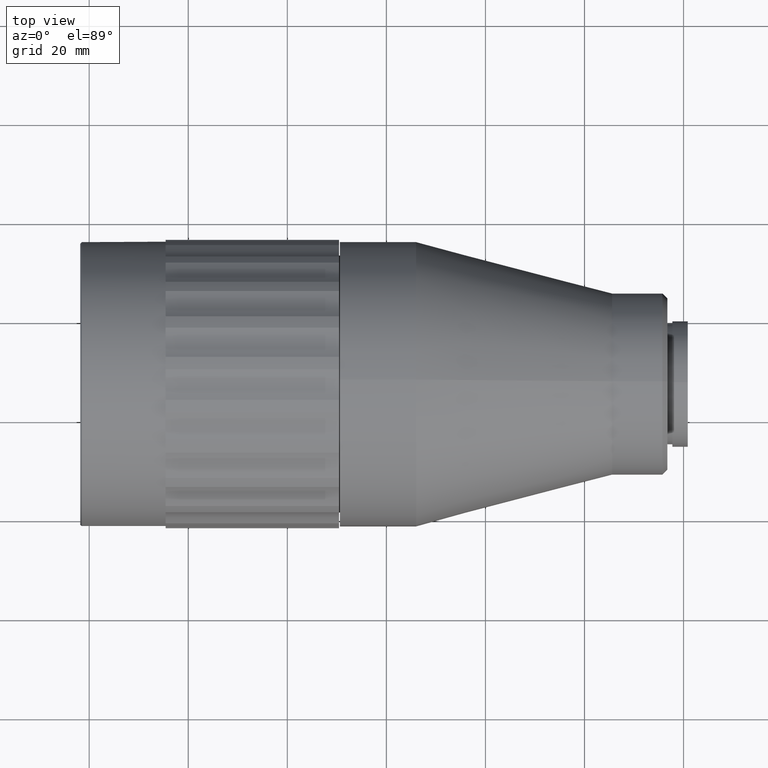
[diagram: clean part render]
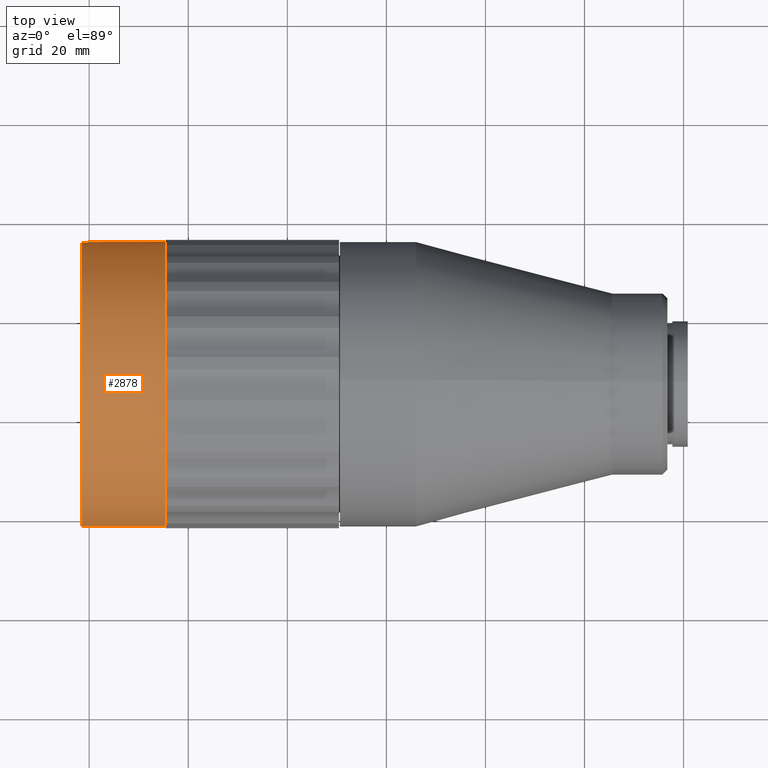
[diagram: same view with one face highlighted and labeled with its STEP entity id]
A machine part, top view. The second image highlights one B-rep face of the part: STEP entity #2878.
In plain terms, the highlighted cylindrical surface (bore or boss wall) has radius 28.75 mm, axis along (-1, 0, -0).
Its self-contained STEP definition (entity closure, byte-faithful):
#361 = FACE_OUTER_BOUND ( 'NONE', #4135, .T. ) ;
#364 = ORIENTED_EDGE ( 'NONE', *, *, #1082, .T. ) ;
#734 = CARTESIAN_POINT ( 'NONE',  ( -61.49402204747971012, 35.93895909611686790, 127.1685099196821227 ) ) ;
#740 = DIRECTION ( 'NONE',  ( -1.000000000000000000, 0.000000000000000000, -0.000000000000000000 ) ) ;
#949 = CARTESIAN_POINT ( 'NONE',  ( -61.49402204747971012, 7.247355026534116895, 129.0000000000000000 ) ) ;
#1082 = EDGE_CURVE ( 'NONE', #4032, #4032, #1695, .T. ) ;
#1257 = EDGE_LOOP ( 'NONE', ( #1735 ) ) ;
#1387 = DIRECTION ( 'NONE',  ( 0.000000000000000000, -0.9979688372028781007, 0.06370400279366546237 ) ) ;
#1421 = VERTEX_POINT ( 'NONE', #734 ) ;
#1591 = EDGE_CURVE ( 'NONE', #1421, #1421, #3266, .T. ) ;
#1695 = CIRCLE ( 'NONE', #2733, 28.75000000000000711 ) ;
#1735 = ORIENTED_EDGE ( 'NONE', *, *, #1591, .T. ) ;
#1829 = AXIS2_PLACEMENT_3D ( 'NONE', #1857, #740, #1387 ) ;
#1857 = CARTESIAN_POINT ( 'NONE',  ( -86.60483285829053557, 7.247355026534116895, 129.0000000000000000 ) ) ;
#2058 = DIRECTION ( 'NONE',  ( 0.000000000000000000, 0.9979688372028781007, -0.06370400279366544849 ) ) ;
#2165 = CARTESIAN_POINT ( 'NONE',  ( -44.56429231774998101, -21.44424904304863588, 130.8314900803178773 ) ) ;
#2559 = FACE_OUTER_BOUND ( 'NONE', #1257, .T. ) ;
#2658 = AXIS2_PLACEMENT_3D ( 'NONE', #949, #3474, #2058 ) ;
#2733 = AXIS2_PLACEMENT_3D ( 'NONE', #4713, #4332, #4355 ) ;
#2878 = ADVANCED_FACE ( 'NONE', ( #2559, #361 ), #3671, .T. ) ;
#3266 = CIRCLE ( 'NONE', #2658, 28.75000000000001066 ) ;
#3474 = DIRECTION ( 'NONE',  ( 1.000000000000000000, 0.000000000000000000, 0.000000000000000000 ) ) ;
#3671 = CYLINDRICAL_SURFACE ( 'NONE', #1829, 28.75000000000000711 ) ;
#4032 = VERTEX_POINT ( 'NONE', #2165 ) ;
#4135 = EDGE_LOOP ( 'NONE', ( #364 ) ) ;
#4332 = DIRECTION ( 'NONE',  ( -1.000000000000000000, 0.000000000000000000, -0.000000000000000000 ) ) ;
#4355 = DIRECTION ( 'NONE',  ( 0.000000000000000000, -0.9979688372028781007, 0.06370400279366546237 ) ) ;
#4713 = CARTESIAN_POINT ( 'NONE',  ( -44.56429231774998101, 7.247355026534116895, 129.0000000000000000 ) ) ;